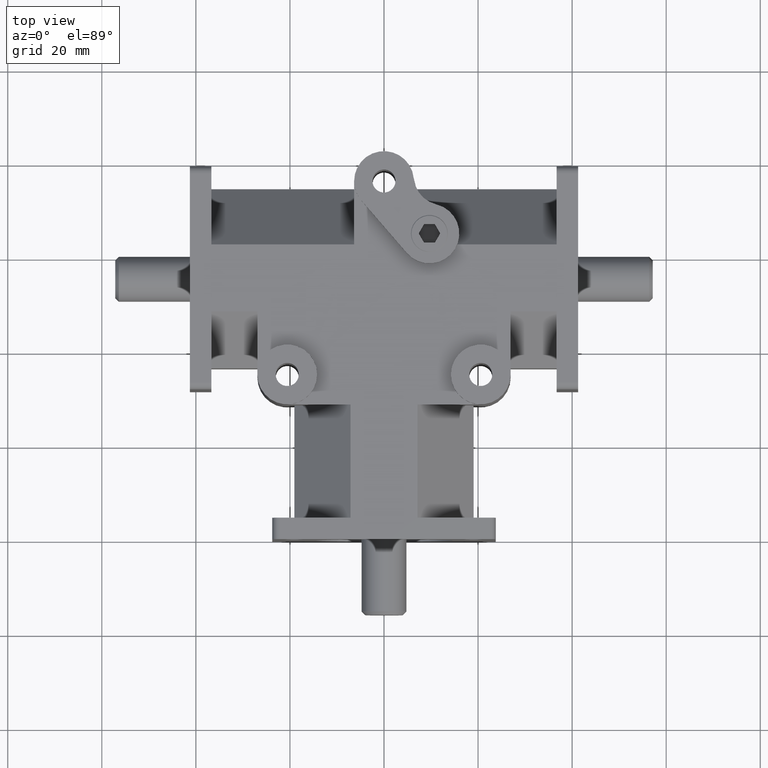
[diagram: clean part render]
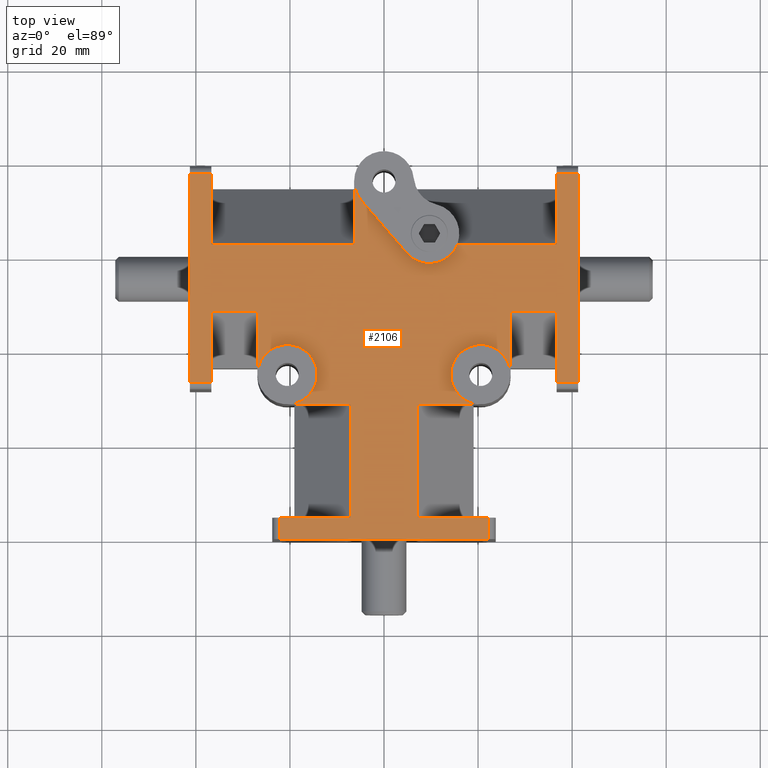
[diagram: same view with one face highlighted and labeled with its STEP entity id]
A machine part, top view. The second image highlights one B-rep face of the part: STEP entity #2106.
In plain terms, the highlighted planar face has unit normal (0, 0, 1).
Its self-contained STEP definition (entity closure, byte-faithful):
#77=PLANE('',#2296);
#168=FACE_OUTER_BOUND('',#305,.T.);
#305=EDGE_LOOP('',(#1563,#1564,#1565,#1566,#1567,#1568,#1569,#1570,#1571,
#1572,#1573,#1574,#1575,#1576,#1577,#1578,#1579,#1580,#1581,#1582,#1583,
#1584,#1585,#1586,#1587,#1588,#1589,#1590,#1591,#1592,#1593,#1594));
#473=CIRCLE('',#2297,0.25);
#474=CIRCLE('',#2298,0.25);
#475=CIRCLE('',#2299,0.25);
#476=CIRCLE('',#2300,0.25);
#477=CIRCLE('',#2301,0.25);
#538=LINE('',#3182,#733);
#543=LINE('',#3206,#738);
#548=LINE('',#3227,#743);
#551=LINE('',#3242,#746);
#556=LINE('',#3263,#751);
#557=LINE('',#3269,#752);
#561=LINE('',#3283,#756);
#569=LINE('',#3304,#764);
#575=LINE('',#3319,#770);
#577=LINE('',#3327,#772);
#578=LINE('',#3329,#773);
#579=LINE('',#3331,#774);
#580=LINE('',#3337,#775);
#581=LINE('',#3339,#776);
#582=LINE('',#3340,#777);
#583=LINE('',#3341,#778);
#584=LINE('',#3343,#779);
#585=LINE('',#3347,#780);
#586=LINE('',#3350,#781);
#587=LINE('',#3352,#782);
#588=LINE('',#3353,#783);
#589=LINE('',#3354,#784);
#590=LINE('',#3356,#785);
#591=LINE('',#3358,#786);
#592=LINE('',#3362,#787);
#593=LINE('',#3364,#788);
#594=LINE('',#3365,#789);
#733=VECTOR('',#2544,1.);
#738=VECTOR('',#2565,1.);
#743=VECTOR('',#2584,1.);
#746=VECTOR('',#2597,1.);
#751=VECTOR('',#2616,1.);
#752=VECTOR('',#2621,1.);
#756=VECTOR('',#2635,1.);
#764=VECTOR('',#2653,1.);
#770=VECTOR('',#2665,1.);
#772=VECTOR('',#2673,1.);
#773=VECTOR('',#2674,1.);
#774=VECTOR('',#2675,1.);
#775=VECTOR('',#2680,1.);
#776=VECTOR('',#2681,1.);
#777=VECTOR('',#2682,1.);
#778=VECTOR('',#2683,1.);
#779=VECTOR('',#2684,1.);
#780=VECTOR('',#2687,1.);
#781=VECTOR('',#2690,1.);
#782=VECTOR('',#2691,1.);
#783=VECTOR('',#2692,1.);
#784=VECTOR('',#2693,1.);
#785=VECTOR('',#2694,1.);
#786=VECTOR('',#2695,1.);
#787=VECTOR('',#2698,1.);
#788=VECTOR('',#2699,1.);
#789=VECTOR('',#2700,1.);
#914=VERTEX_POINT('',#3089);
#942=VERTEX_POINT('',#3175);
#945=VERTEX_POINT('',#3180);
#955=VERTEX_POINT('',#3203);
#956=VERTEX_POINT('',#3205);
#962=VERTEX_POINT('',#3220);
#965=VERTEX_POINT('',#3225);
#971=VERTEX_POINT('',#3239);
#972=VERTEX_POINT('',#3241);
#978=VERTEX_POINT('',#3256);
#981=VERTEX_POINT('',#3261);
#983=VERTEX_POINT('',#3266);
#984=VERTEX_POINT('',#3268);
#997=VERTEX_POINT('',#3302);
#1003=VERTEX_POINT('',#3317);
#1006=VERTEX_POINT('',#3326);
#1007=VERTEX_POINT('',#3328);
#1008=VERTEX_POINT('',#3330);
#1009=VERTEX_POINT('',#3332);
#1010=VERTEX_POINT('',#3334);
#1011=VERTEX_POINT('',#3336);
#1012=VERTEX_POINT('',#3338);
#1013=VERTEX_POINT('',#3342);
#1014=VERTEX_POINT('',#3344);
#1015=VERTEX_POINT('',#3346);
#1016=VERTEX_POINT('',#3349);
#1017=VERTEX_POINT('',#3351);
#1018=VERTEX_POINT('',#3355);
#1019=VERTEX_POINT('',#3357);
#1020=VERTEX_POINT('',#3359);
#1021=VERTEX_POINT('',#3361);
#1022=VERTEX_POINT('',#3363);
#1156=EDGE_CURVE('',#945,#942,#538,.T.);
#1166=EDGE_CURVE('',#955,#956,#543,.T.);
#1176=EDGE_CURVE('',#965,#962,#548,.T.);
#1182=EDGE_CURVE('',#971,#972,#551,.T.);
#1192=EDGE_CURVE('',#981,#978,#556,.T.);
#1194=EDGE_CURVE('',#983,#984,#557,.T.);
#1201=EDGE_CURVE('',#942,#955,#561,.T.);
#1213=EDGE_CURVE('',#997,#965,#569,.T.);
#1221=EDGE_CURVE('',#1003,#981,#575,.T.);
#1225=EDGE_CURVE('',#1006,#945,#577,.T.);
#1226=EDGE_CURVE('',#1007,#1006,#578,.T.);
#1227=EDGE_CURVE('',#1008,#1007,#579,.T.);
#1228=EDGE_CURVE('',#1008,#1009,#473,.T.);
#1229=EDGE_CURVE('',#1009,#1010,#474,.T.);
#1230=EDGE_CURVE('',#1011,#1010,#580,.T.);
#1231=EDGE_CURVE('',#1012,#1011,#581,.T.);
#1232=EDGE_CURVE('',#984,#1012,#582,.T.);
#1233=EDGE_CURVE('',#978,#983,#583,.T.);
#1234=EDGE_CURVE('',#1013,#1003,#584,.T.);
#1235=EDGE_CURVE('',#1013,#1014,#475,.T.);
#1236=EDGE_CURVE('',#1014,#1015,#585,.T.);
#1237=EDGE_CURVE('',#1015,#914,#476,.T.);
#1238=EDGE_CURVE('',#1016,#914,#586,.T.);
#1239=EDGE_CURVE('',#1017,#1016,#587,.T.);
#1240=EDGE_CURVE('',#972,#1017,#588,.T.);
#1241=EDGE_CURVE('',#962,#971,#589,.T.);
#1242=EDGE_CURVE('',#1018,#997,#590,.T.);
#1243=EDGE_CURVE('',#1019,#1018,#591,.T.);
#1244=EDGE_CURVE('',#1019,#1020,#477,.T.);
#1245=EDGE_CURVE('',#1021,#1020,#592,.T.);
#1246=EDGE_CURVE('',#1022,#1021,#593,.T.);
#1247=EDGE_CURVE('',#956,#1022,#594,.T.);
#1563=ORIENTED_EDGE('',*,*,#1156,.F.);
#1564=ORIENTED_EDGE('',*,*,#1225,.F.);
#1565=ORIENTED_EDGE('',*,*,#1226,.F.);
#1566=ORIENTED_EDGE('',*,*,#1227,.F.);
#1567=ORIENTED_EDGE('',*,*,#1228,.T.);
#1568=ORIENTED_EDGE('',*,*,#1229,.T.);
#1569=ORIENTED_EDGE('',*,*,#1230,.F.);
#1570=ORIENTED_EDGE('',*,*,#1231,.F.);
#1571=ORIENTED_EDGE('',*,*,#1232,.F.);
#1572=ORIENTED_EDGE('',*,*,#1194,.F.);
#1573=ORIENTED_EDGE('',*,*,#1233,.F.);
#1574=ORIENTED_EDGE('',*,*,#1192,.F.);
#1575=ORIENTED_EDGE('',*,*,#1221,.F.);
#1576=ORIENTED_EDGE('',*,*,#1234,.F.);
#1577=ORIENTED_EDGE('',*,*,#1235,.T.);
#1578=ORIENTED_EDGE('',*,*,#1236,.T.);
#1579=ORIENTED_EDGE('',*,*,#1237,.T.);
#1580=ORIENTED_EDGE('',*,*,#1238,.F.);
#1581=ORIENTED_EDGE('',*,*,#1239,.F.);
#1582=ORIENTED_EDGE('',*,*,#1240,.F.);
#1583=ORIENTED_EDGE('',*,*,#1182,.F.);
#1584=ORIENTED_EDGE('',*,*,#1241,.F.);
#1585=ORIENTED_EDGE('',*,*,#1176,.F.);
#1586=ORIENTED_EDGE('',*,*,#1213,.F.);
#1587=ORIENTED_EDGE('',*,*,#1242,.F.);
#1588=ORIENTED_EDGE('',*,*,#1243,.F.);
#1589=ORIENTED_EDGE('',*,*,#1244,.T.);
#1590=ORIENTED_EDGE('',*,*,#1245,.F.);
#1591=ORIENTED_EDGE('',*,*,#1246,.F.);
#1592=ORIENTED_EDGE('',*,*,#1247,.F.);
#1593=ORIENTED_EDGE('',*,*,#1166,.F.);
#1594=ORIENTED_EDGE('',*,*,#1201,.F.);
#2106=ADVANCED_FACE('',(#168),#77,.T.);
#2296=AXIS2_PLACEMENT_3D('',#3325,#2671,#2672);
#2297=AXIS2_PLACEMENT_3D('',#3333,#2676,#2677);
#2298=AXIS2_PLACEMENT_3D('',#3335,#2678,#2679);
#2299=AXIS2_PLACEMENT_3D('',#3345,#2685,#2686);
#2300=AXIS2_PLACEMENT_3D('',#3348,#2688,#2689);
#2301=AXIS2_PLACEMENT_3D('',#3360,#2696,#2697);
#2544=DIRECTION('',(0.,-1.,0.));
#2565=DIRECTION('',(0.,1.,0.));
#2584=DIRECTION('',(-1.,0.,0.));
#2597=DIRECTION('',(1.,0.,0.));
#2616=DIRECTION('',(1.,0.,0.));
#2621=DIRECTION('',(-1.,0.,0.));
#2635=DIRECTION('',(-1.,0.,0.));
#2653=DIRECTION('',(0.,-1.,0.));
#2665=DIRECTION('',(0.,1.,0.));
#2671=DIRECTION('center_axis',(0.,0.,1.));
#2672=DIRECTION('ref_axis',(-1.,0.,0.));
#2673=DIRECTION('',(1.,0.,0.));
#2674=DIRECTION('',(0.,-1.,0.));
#2675=DIRECTION('',(-1.,0.,0.));
#2676=DIRECTION('center_axis',(0.,0.,-1.));
#2677=DIRECTION('ref_axis',(1.,0.,0.));
#2678=DIRECTION('center_axis',(0.,0.,-1.));
#2679=DIRECTION('ref_axis',(1.,0.,0.));
#2680=DIRECTION('',(0.,-1.,0.));
#2681=DIRECTION('',(-1.,0.,0.));
#2682=DIRECTION('',(0.,1.,0.));
#2683=DIRECTION('',(0.,-1.,0.));
#2684=DIRECTION('',(1.,0.,0.));
#2685=DIRECTION('center_axis',(0.,0.,-1.));
#2686=DIRECTION('ref_axis',(1.,0.,0.));
#2687=DIRECTION('',(-0.653619870346092,0.75682300776916,0.));
#2688=DIRECTION('center_axis',(0.,0.,-1.));
#2689=DIRECTION('ref_axis',(1.,0.,0.));
#2690=DIRECTION('',(0.,1.,0.));
#2691=DIRECTION('',(1.,0.,0.));
#2692=DIRECTION('',(0.,-1.,0.));
#2693=DIRECTION('',(0.,1.,0.));
#2694=DIRECTION('',(-1.,0.,0.));
#2695=DIRECTION('',(0.,1.,0.));
#2696=DIRECTION('center_axis',(0.,0.,-1.));
#2697=DIRECTION('ref_axis',(1.,0.,0.));
#2698=DIRECTION('',(-1.,0.,0.));
#2699=DIRECTION('',(0.,1.,0.));
#2700=DIRECTION('',(1.,0.,0.));
#3089=CARTESIAN_POINT('',(-0.25,2.9975,0.69));
#3175=CARTESIAN_POINT('',(0.875,0.,0.69));
#3180=CARTESIAN_POINT('',(0.875,0.18,0.69));
#3182=CARTESIAN_POINT('',(0.875,0.930615091183138,0.69));
#3203=CARTESIAN_POINT('',(-0.875,0.,0.69));
#3205=CARTESIAN_POINT('',(-0.875,0.18,0.69));
#3206=CARTESIAN_POINT('',(-0.875,0.840615091183138,0.69));
#3220=CARTESIAN_POINT('',(-1.625,1.3125,0.69));
#3225=CARTESIAN_POINT('',(-1.445,1.3125,0.69));
#3227=CARTESIAN_POINT('',(-0.7225,1.3125,0.69));
#3239=CARTESIAN_POINT('',(-1.625,3.0625,0.69));
#3241=CARTESIAN_POINT('',(-1.445,3.0625,0.69));
#3242=CARTESIAN_POINT('',(-0.8125,3.0625,0.69));
#3256=CARTESIAN_POINT('',(1.625,3.0625,0.69));
#3261=CARTESIAN_POINT('',(1.445,3.0625,0.69));
#3263=CARTESIAN_POINT('',(0.7225,3.0625,0.69));
#3266=CARTESIAN_POINT('',(1.625,1.3125,0.69));
#3268=CARTESIAN_POINT('',(1.445,1.3125,0.69));
#3269=CARTESIAN_POINT('',(0.8125,1.3125,0.69));
#3283=CARTESIAN_POINT('',(0.935000000000001,0.,0.69));
#3302=CARTESIAN_POINT('',(-1.445,1.9075,0.69));
#3304=CARTESIAN_POINT('',(-1.445,1.2525,0.69));
#3317=CARTESIAN_POINT('',(1.445,2.4675,0.69));
#3319=CARTESIAN_POINT('',(1.445,2.9375,0.69));
#3325=CARTESIAN_POINT('Origin',(-1.34441069388203E-17,1.68123018236628,
0.69));
#3326=CARTESIAN_POINT('',(0.28,0.18,0.69));
#3327=CARTESIAN_POINT('',(0.935000000000001,0.18,0.69));
#3328=CARTESIAN_POINT('',(0.28,1.1275,0.69));
#3329=CARTESIAN_POINT('',(0.28,1.40061509118314,0.69));
#3330=CARTESIAN_POINT('',(0.809999999999999,1.1275,0.69));
#3331=CARTESIAN_POINT('',(0.405,1.1275,0.69));
#3332=CARTESIAN_POINT('',(0.56,1.3775,0.69));
#3333=CARTESIAN_POINT('Origin',(0.81,1.3775,0.69));
#3334=CARTESIAN_POINT('',(1.06,1.3775,0.69));
#3335=CARTESIAN_POINT('Origin',(0.81,1.3775,0.69));
#3336=CARTESIAN_POINT('',(1.06,1.9075,0.69));
#3337=CARTESIAN_POINT('',(1.06,1.3775,0.69));
#3338=CARTESIAN_POINT('',(1.445,1.9075,0.69));
#3339=CARTESIAN_POINT('',(0.7225,1.9075,0.69));
#3340=CARTESIAN_POINT('',(1.445,1.47061509118314,0.69));
#3341=CARTESIAN_POINT('',(1.625,1.2525,0.69));
#3342=CARTESIAN_POINT('',(0.613238075793812,2.4675,0.69));
#3343=CARTESIAN_POINT('',(0.125,2.4675,0.69));
#3344=CARTESIAN_POINT('',(0.19079424805771,2.39409503241348,0.69));
#3345=CARTESIAN_POINT('Origin',(0.38,2.5575,0.69));
#3346=CARTESIAN_POINT('',(-0.18920575194229,2.83409503241348,0.69));
#3347=CARTESIAN_POINT('',(0.324501812419188,2.23927574736335,0.69));
#3348=CARTESIAN_POINT('Origin',(0.,2.9975,0.69));
#3349=CARTESIAN_POINT('',(-0.25,2.4675,0.69));
#3350=CARTESIAN_POINT('',(-0.25,2.9375,0.69));
#3351=CARTESIAN_POINT('',(-1.445,2.4675,0.69));
#3352=CARTESIAN_POINT('',(-0.7225,2.4675,0.69));
#3353=CARTESIAN_POINT('',(-1.445,2.40561509118314,0.69));
#3354=CARTESIAN_POINT('',(-1.625,1.2525,0.69));
#3355=CARTESIAN_POINT('',(-1.06,1.9075,0.69));
#3356=CARTESIAN_POINT('',(-0.53,1.9075,0.69));
#3357=CARTESIAN_POINT('',(-1.06,1.3775,0.69));
#3358=CARTESIAN_POINT('',(-1.06,1.53311509118314,0.69));
#3359=CARTESIAN_POINT('',(-0.81,1.1275,0.69));
#3360=CARTESIAN_POINT('Origin',(-0.81,1.3775,0.69));
#3361=CARTESIAN_POINT('',(-0.28,1.1275,0.69));
#3362=CARTESIAN_POINT('',(-0.75,1.1275,0.69));
#3363=CARTESIAN_POINT('',(-0.28,0.18,0.69));
#3364=CARTESIAN_POINT('',(-0.28,0.930615091183138,0.69));
#3365=CARTESIAN_POINT('',(-0.4675,0.18,0.69));